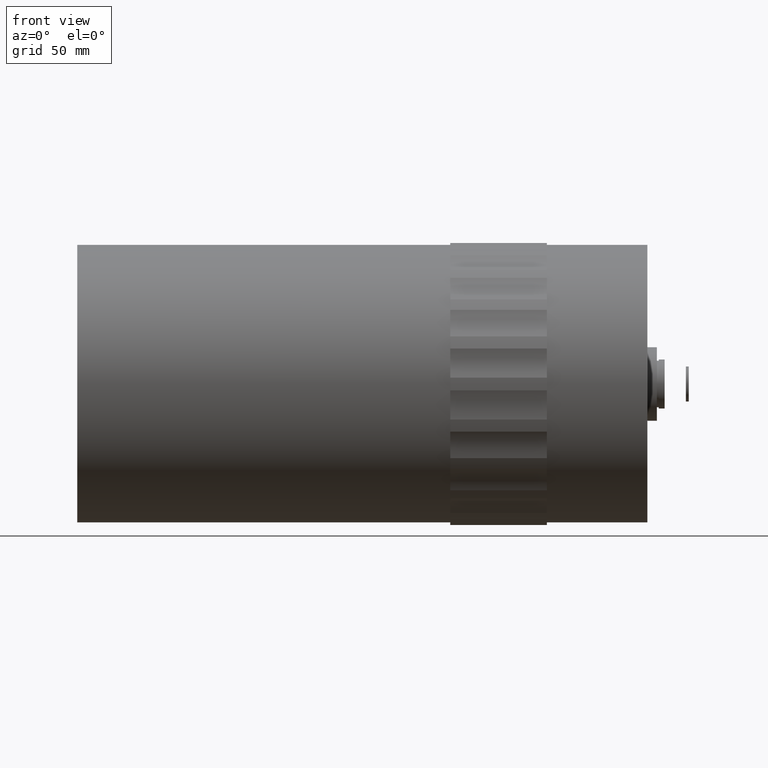
[diagram: clean part render]
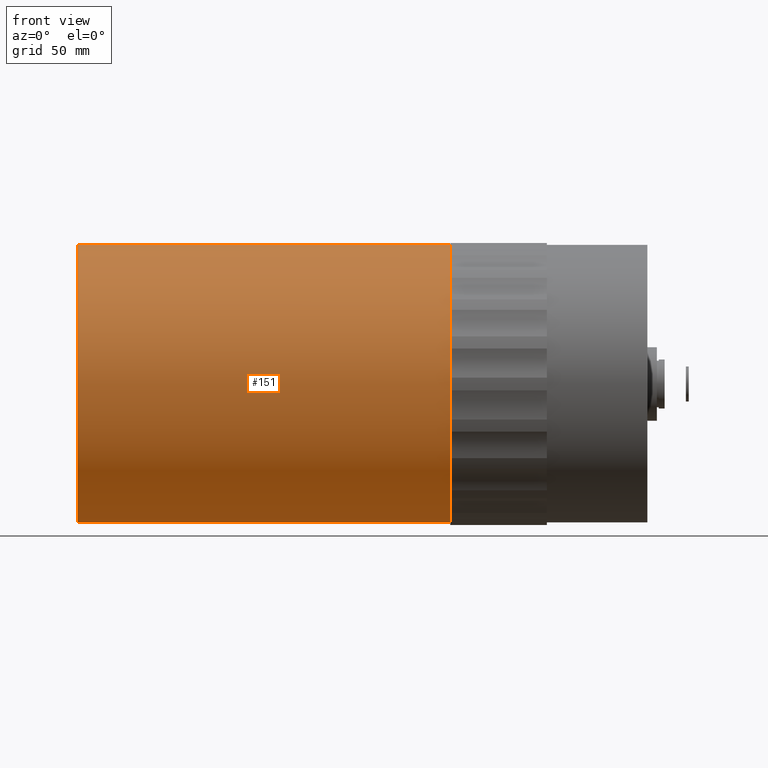
[diagram: same view with one face highlighted and labeled with its STEP entity id]
A machine part, front view. The second image highlights one B-rep face of the part: STEP entity #151.
In plain terms, the highlighted cylindrical surface (bore or boss wall) has radius 72 mm, axis along (-1, -0, -0).
Its self-contained STEP definition (entity closure, byte-faithful):
#151 = ADVANCED_FACE ( 'NONE', ( #2771, #2328 ), #2587, .T. ) ;
#214 = DIRECTION ( 'NONE',  ( 0.000000000000000000, 0.000000000000000000, 1.000000000000000000 ) ) ;
#401 = EDGE_CURVE ( 'NONE', #1110, #1110, #1740, .T. ) ;
#409 = CARTESIAN_POINT ( 'NONE',  ( -204.0010842964864821, 0.000000000000000000, 0.000000000000000000 ) ) ;
#703 = CARTESIAN_POINT ( 'NONE',  ( -11.00000000000009237, 0.000000000000000000, 72.00000000000001421 ) ) ;
#859 = AXIS2_PLACEMENT_3D ( 'NONE', #2177, #1733, #2861 ) ;
#1013 = CARTESIAN_POINT ( 'NONE',  ( -125.8137890602518070, 0.000000000000000000, 0.000000000000000000 ) ) ;
#1110 = VERTEX_POINT ( 'NONE', #703 ) ;
#1248 = EDGE_LOOP ( 'NONE', ( #1278 ) ) ;
#1278 = ORIENTED_EDGE ( 'NONE', *, *, #401, .T. ) ;
#1290 = EDGE_LOOP ( 'NONE', ( #1812 ) ) ;
#1478 = AXIS2_PLACEMENT_3D ( 'NONE', #1013, #2151, #2135 ) ;
#1558 = CIRCLE ( 'NONE', #2236, 72.00000000000001421 ) ;
#1733 = DIRECTION ( 'NONE',  ( -1.000000000000000000, -0.000000000000000000, -0.000000000000000000 ) ) ;
#1740 = CIRCLE ( 'NONE', #859, 72.00000000000001421 ) ;
#1812 = ORIENTED_EDGE ( 'NONE', *, *, #2415, .T. ) ;
#1943 = DIRECTION ( 'NONE',  ( 1.000000000000000000, 0.000000000000000000, 0.000000000000000000 ) ) ;
#2135 = DIRECTION ( 'NONE',  ( 0.000000000000000000, 0.000000000000000000, 1.000000000000000000 ) ) ;
#2151 = DIRECTION ( 'NONE',  ( -1.000000000000000000, -0.000000000000000000, -0.000000000000000000 ) ) ;
#2177 = CARTESIAN_POINT ( 'NONE',  ( -11.00000000000009237, 0.000000000000000000, 0.000000000000000000 ) ) ;
#2236 = AXIS2_PLACEMENT_3D ( 'NONE', #409, #1943, #214 ) ;
#2295 = CARTESIAN_POINT ( 'NONE',  ( -204.0010842964864821, 0.000000000000000000, 72.00000000000001421 ) ) ;
#2328 = FACE_OUTER_BOUND ( 'NONE', #1248, .T. ) ;
#2415 = EDGE_CURVE ( 'NONE', #2768, #2768, #1558, .T. ) ;
#2587 = CYLINDRICAL_SURFACE ( 'NONE', #1478, 72.00000000000001421 ) ;
#2768 = VERTEX_POINT ( 'NONE', #2295 ) ;
#2771 = FACE_OUTER_BOUND ( 'NONE', #1290, .T. ) ;
#2861 = DIRECTION ( 'NONE',  ( 0.000000000000000000, 0.000000000000000000, 1.000000000000000000 ) ) ;